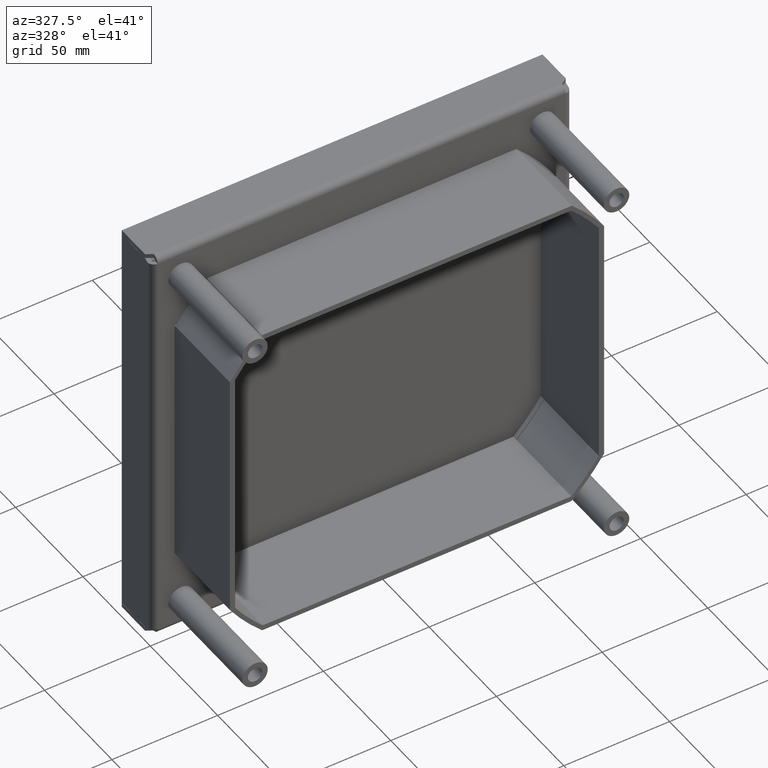
[diagram: clean part render]
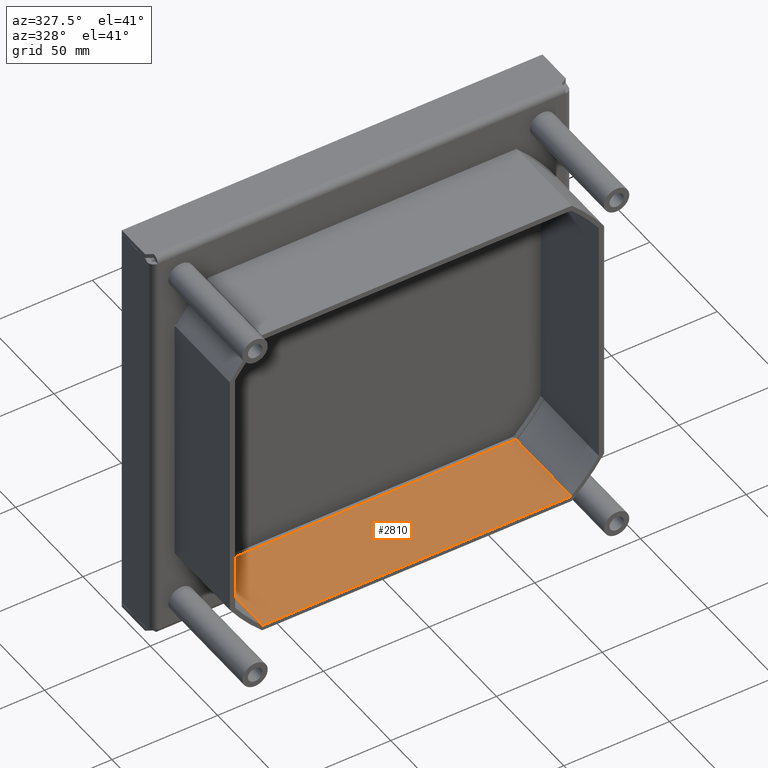
[diagram: same view with one face highlighted and labeled with its STEP entity id]
A machine part, auxiliary view. The second image highlights one B-rep face of the part: STEP entity #2810.
In plain terms, the highlighted planar face has unit normal (0, 0, 1).
Its self-contained STEP definition (entity closure, byte-faithful):
#2344=DIRECTION('',(0.E0,0.E0,-1.E0));
#2345=VECTOR('',#2344,1.459417692095E2);
#2346=CARTESIAN_POINT('',(7.55E1,0.E0,7.297088460475E1));
#2347=LINE('',#2346,#2345);
#2360=DIRECTION('',(4.547473508865E-13,-1.E0,-1.136868377216E-13));
#2361=VECTOR('',#2360,5.E-1);
#2362=CARTESIAN_POINT('',(7.55E1,0.E0,7.297088460475E1));
#2363=LINE('',#2362,#2361);
#2409=DIRECTION('',(0.E0,0.E0,1.E0));
#2410=VECTOR('',#2409,1.459417692095E2);
#2411=CARTESIAN_POINT('',(7.55E1,-4.1E1,-7.297088460475E1));
#2412=LINE('',#2411,#2410);
#2590=DIRECTION('',(0.E0,-1.E0,0.E0));
#2591=VECTOR('',#2590,4.05E1);
#2592=CARTESIAN_POINT('',(7.55E1,-5.E-1,-7.297088460475E1));
#2593=LINE('',#2592,#2591);
#2602=DIRECTION('',(5.400124791777E-13,-1.E0,1.136868377216E-13));
#2603=VECTOR('',#2602,5.E-1);
#2604=CARTESIAN_POINT('',(7.55E1,0.E0,-7.297088460475E1));
#2605=LINE('',#2604,#2603);
#2644=DIRECTION('',(0.E0,1.E0,0.E0));
#2645=VECTOR('',#2644,4.05E1);
#2646=CARTESIAN_POINT('',(7.55E1,-4.1E1,7.297088460475E1));
#2647=LINE('',#2646,#2645);
#2680=CARTESIAN_POINT('',(7.55E1,0.E0,7.297088460475E1));
#2681=CARTESIAN_POINT('',(7.55E1,0.E0,-7.297088460475E1));
#2682=VERTEX_POINT('',#2680);
#2683=VERTEX_POINT('',#2681);
#2712=CARTESIAN_POINT('',(7.55E1,-4.1E1,-7.297088460475E1));
#2713=CARTESIAN_POINT('',(7.55E1,-4.1E1,7.297088460475E1));
#2714=VERTEX_POINT('',#2712);
#2715=VERTEX_POINT('',#2713);
#2716=CARTESIAN_POINT('',(7.55E1,-5.E-1,-7.297088460475E1));
#2717=VERTEX_POINT('',#2716);
#2718=CARTESIAN_POINT('',(7.55E1,-5.E-1,7.297088460475E1));
#2719=VERTEX_POINT('',#2718);
#2792=CARTESIAN_POINT('',(7.55E1,0.E0,0.E0));
#2793=DIRECTION('',(-1.E0,0.E0,0.E0));
#2794=DIRECTION('',(0.E0,0.E0,1.E0));
#2795=AXIS2_PLACEMENT_3D('',#2792,#2793,#2794);
#2796=PLANE('',#2795);
#2798=ORIENTED_EDGE('',*,*,#2797,.F.);
#2800=ORIENTED_EDGE('',*,*,#2799,.F.);
#2802=ORIENTED_EDGE('',*,*,#2801,.F.);
#2803=ORIENTED_EDGE('',*,*,#2781,.F.);
#2805=ORIENTED_EDGE('',*,*,#2804,.T.);
#2807=ORIENTED_EDGE('',*,*,#2806,.F.);
#2808=EDGE_LOOP('',(#2798,#2800,#2802,#2803,#2805,#2807));
#2809=FACE_OUTER_BOUND('',#2808,.F.);
#2781=EDGE_CURVE('',#2682,#2683,#2347,.T.);
#2797=EDGE_CURVE('',#2714,#2715,#2412,.T.);
#2799=EDGE_CURVE('',#2717,#2714,#2593,.T.);
#2801=EDGE_CURVE('',#2683,#2717,#2605,.T.);
#2804=EDGE_CURVE('',#2682,#2719,#2363,.T.);
#2806=EDGE_CURVE('',#2715,#2719,#2647,.T.);
#2810=ADVANCED_FACE('',(#2809),#2796,.T.);